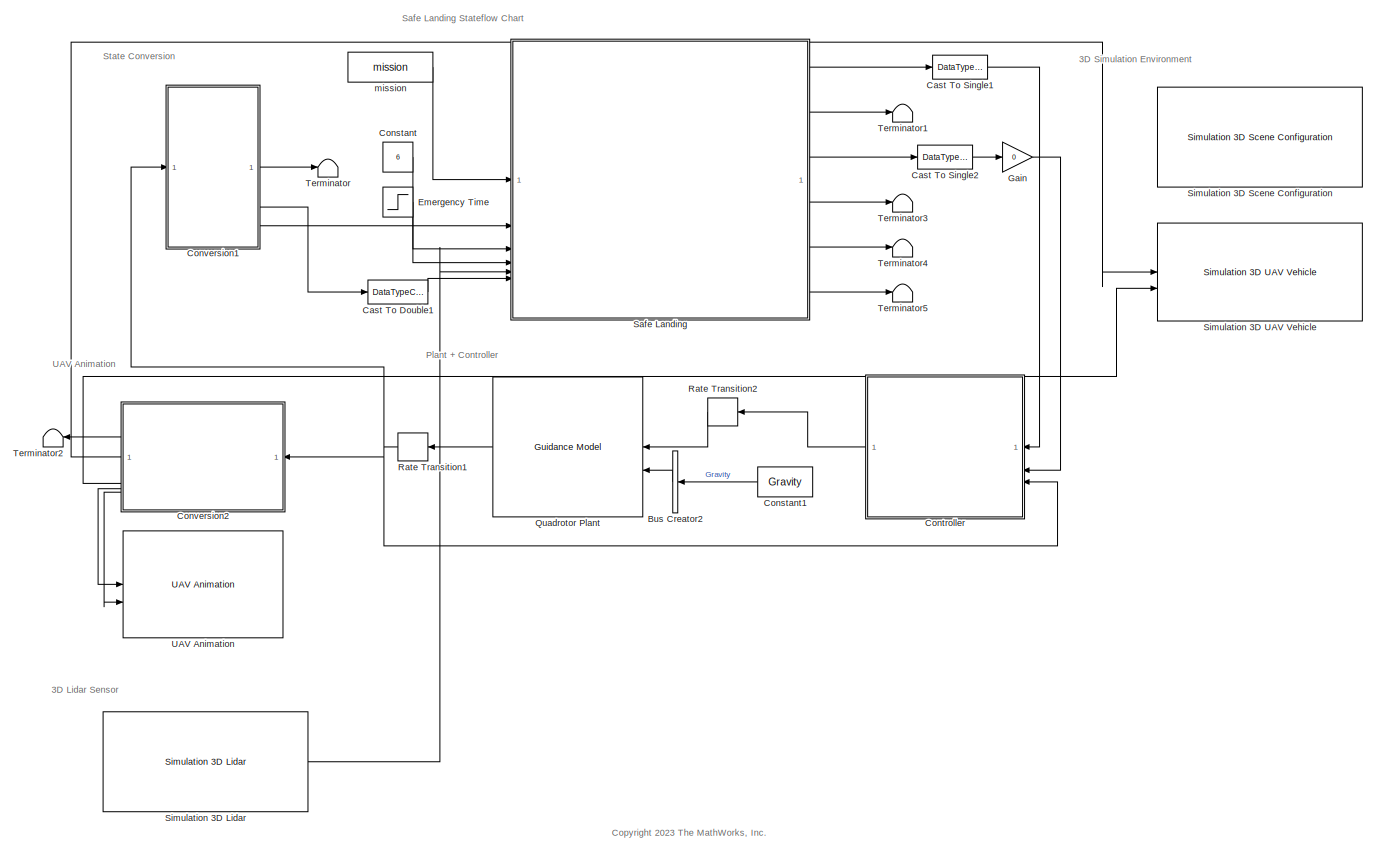
[diagram: root canvas - part 1/1, most of the canvas]
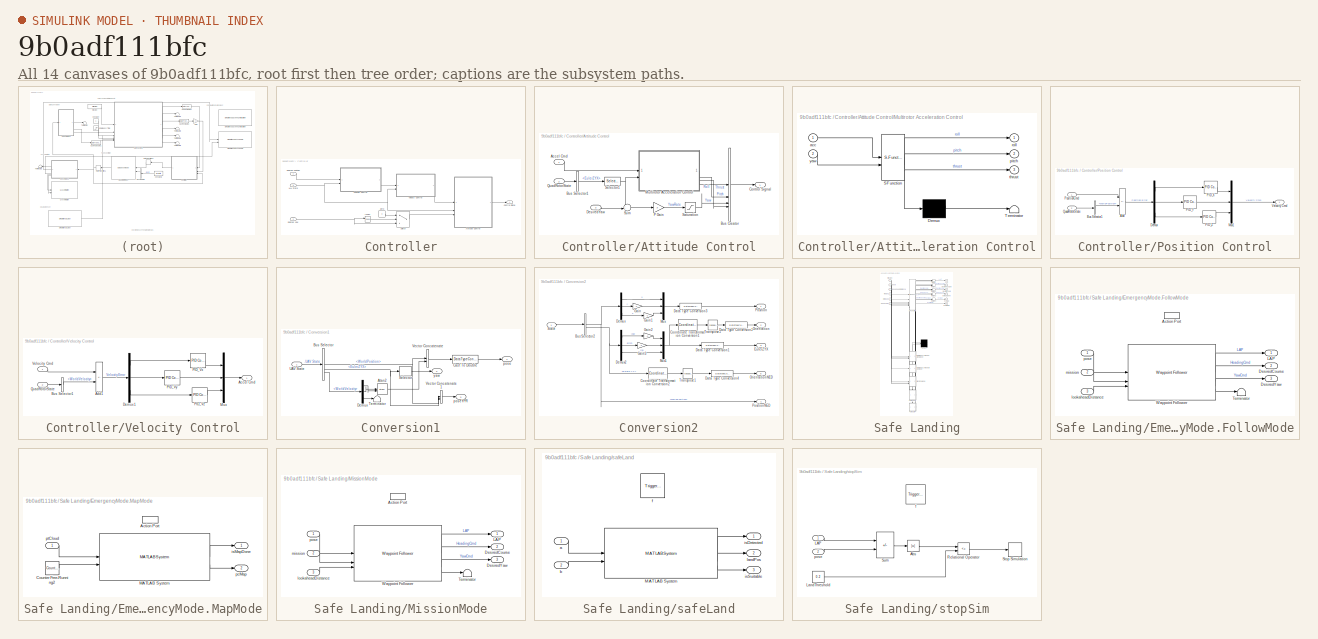
[diagram: thumbnail index - all 14 canvases of the model, root first then tree order]
MODEL slx_9b0adf111bfc
KIND model
CONFIG AbsTol = auto
CONFIG EnableMultiTasking = off
CONFIG FixedStep = auto
CONFIG MaxStep = auto
CONFIG MinStep = auto
CONFIG RelTol = 1e-3
CONFIG SampleTimeConstraint = Unconstrained
CONFIG SolverName = VariableStepAuto
CONFIG StartTime = 0.0
CONFIG StopTime = inf
BLOCK [BusCreator] Bus Creator2
  DisplayOption = bar
  InheritFromInputs = on
  Inputs = 1
  NonVirtualBus = on
  OutDataTypeStr = Bus: uavGuidanceEnvironmentBus
BLOCK [DataTypeConversion] Cast To Double1
  OutDataTypeStr = double
  RndMeth = Floor
  SaturateOnIntegerOverflow = off
BLOCK [DataTypeConversion] Cast To Single1
  OutDataTypeStr = single
  RndMeth = Floor
  SaturateOnIntegerOverflow = off
BLOCK [DataTypeConversion] Cast To Single2
  OutDataTypeStr = single
  RndMeth = Floor
  SaturateOnIntegerOverflow = off
BLOCK [Constant] Constant
  Value = 6
BLOCK [Constant] Constant1
  AttributesFormatString = %<Value>
  OutDataTypeStr = single
  Value = Gravity
BLOCK [SubSystem] Controller
BLOCK [SubSystem] Controller/Attitude Control
BLOCK [Inport] Controller/Attitude Control/Accel Cmd
BLOCK [BusCreator] Controller/Attitude Control/Bus Creator
  DisplayOption = bar
  InheritFromInputs = off
  Inputs = 4
  NonVirtualBus = on
  OutDataTypeStr = Bus: uavGuidanceControlBus
BLOCK [BusSelector] Controller/Attitude Control/Bus Selector1
  NameLocation = top
  OutputSignals = EulerZYX
BLOCK [Outport] Controller/Attitude Control/Control Signal
BLOCK [Inport] Controller/Attitude Control/DesiredYaw
  Port = 3
BLOCK [SubSystem] Controller/Attitude Control/Multirotor Acceleration Control
  ErrorFcn = Stateflow.Translate.translate
  PermitHierarchicalResolution = ExplicitOnly
  SFBlockType = MATLAB Function
  TreatAsAtomicUnit = on
BLOCK [Demux] Controller/Attitude Control/Multirotor Acceleration Control/ Demux 
  Outputs = 1
BLOCK [S-Function] Controller/Attitude Control/Multirotor Acceleration Control/ SFunction 
  EnableBusSupport = on
  FunctionName = sf_sfun
  Parameters = DroneMass,Gravity
  PortCounts = [2 4]
  SFcnIsStateOwnerBlock = off
  SFunctionDeploymentMode = off
  Tag = Stateflow S-Function 5
BLOCK [Terminator] Controller/Attitude Control/Multirotor Acceleration Control/ Terminator 
BLOCK [Inport] Controller/Attitude Control/Multirotor Acceleration Control/acc
BLOCK [Outport] Controller/Attitude Control/Multirotor Acceleration Control/pitch
  Port = 2
  VectorParamsAs1DForOutWhenUnconnected = off
BLOCK [Outport] Controller/Attitude Control/Multirotor Acceleration Control/roll
  VectorParamsAs1DForOutWhenUnconnected = off
BLOCK [Outport] Controller/Attitude Control/Multirotor Acceleration Control/thrust
  Port = 3
  VectorParamsAs1DForOutWhenUnconnected = off
BLOCK [Inport] Controller/Attitude Control/Multirotor Acceleration Control/yaw
  Port = 2
BLOCK [Gain] Controller/Attitude Control/P Gain
  Gain = 3
BLOCK [Inport] Controller/Attitude Control/QuadRotorState
  Port = 2
BLOCK [Saturate] Controller/Attitude Control/Saturation
BLOCK [Selector] Controller/Attitude Control/Selector1
  IndexOptions = Index vector (dialog)
  Indices = [1]
  InputPortWidth = 3
  OutputSizes = 1
BLOCK [Sum] Controller/Attitude Control/Sum
  Inputs = -+|
BLOCK [Outport] Controller/Control Signal
BLOCK [Inport] Controller/Desired Position
BLOCK [Inport] Controller/Desired Yaw
  Port = 2
BLOCK [RelationalOperator] Controller/IsNaN
  InputSameDT = off
  Operator = isNaN
  OutDataTypeStr = boolean
  RndMeth = Simplest
BLOCK [SubSystem] Controller/Position Control
BLOCK [Sum] Controller/Position Control/Add
  IconShape = rectangular
  Inputs = +-
BLOCK [BusSelector] Controller/Position Control/Bus Selector1
  NameLocation = top
  OutputSignals = WorldPosition
BLOCK [Demux] Controller/Position Control/Demux
  Outputs = 3
BLOCK [Mux] Controller/Position Control/Mux1
  DisplayOption = bar
  Inputs = 3
BLOCK [Reference] Controller/Position Control/PID_X  REF=slpidlib/PID Controller
  AttributesFormatString = P: %<P>, I: %<I>, D:%<D>
  SourceBlock = slpidlib/PID Controller
  SourceType = PID 1dof
BLOCK [Reference] Controller/Position Control/PID_Y  REF=slpidlib/PID Controller
  AttributesFormatString = P: %<P>, I: %<I>, D:%<D>
  SourceBlock = slpidlib/PID Controller
  SourceType = PID 1dof
BLOCK [Reference] Controller/Position Control/PID_Z  REF=slpidlib/PID Controller
  AttributesFormatString = P: %<P>, I: %<I>, D:%<D>
  SourceBlock = slpidlib/PID Controller
  SourceType = PID 1dof
BLOCK [Inport] Controller/Position Control/PositionCmd
BLOCK [Inport] Controller/Position Control/QuadRotorState
  Port = 2
BLOCK [Outport] Controller/Position Control/Velocity Cmd
BLOCK [Switch] Controller/Switch
  Criteria = u2 ~= 0
  InputSameDT = off
  SaturateOnIntegerOverflow = off
BLOCK [Inport] Controller/UAV State
  Port = 3
BLOCK [SubSystem] Controller/Velocity Control
BLOCK [Outport] Controller/Velocity Control/Accel Cmd
BLOCK [Sum] Controller/Velocity Control/Add1
  IconShape = rectangular
  Inputs = +-
BLOCK [BusSelector] Controller/Velocity Control/Bus Selector1
  NameLocation = top
  OutputSignals = WorldVelocity
BLOCK [Demux] Controller/Velocity Control/Demux1
  Outputs = 3
BLOCK [Mux] Controller/Velocity Control/Mux
  DisplayOption = bar
  Inputs = 3
BLOCK [Reference] Controller/Velocity Control/PID_Vx  REF=slpidlib/PID Controller
  AttributesFormatString = P: %<P>, I: %<I>, D:%<D>
  SourceBlock = slpidlib/PID Controller
  SourceType = PID 1dof
BLOCK [Reference] Controller/Velocity Control/PID_Vy  REF=slpidlib/PID Controller
  AttributesFormatString = P: %<P>, I: %<I>, D:%<D>
  SourceBlock = slpidlib/PID Controller
  SourceType = PID 1dof
BLOCK [Reference] Controller/Velocity Control/PID_Vz  REF=slpidlib/PID Controller
  AttributesFormatString = P: %<P>, I: %<I>, D:%<D>
  SourceBlock = slpidlib/PID Controller
  SourceType = PID 1dof
BLOCK [Inport] Controller/Velocity Control/QuadRotorState
  Port = 2
BLOCK [Inport] Controller/Velocity Control/Velocity Cmd
BLOCK [Constant] Controller/Zero
  OutDataTypeStr = Inherit: Inherit via back propagation
  Value = 0
BLOCK [SubSystem] Conversion1
BLOCK [Trigonometry] Conversion1/Atan2
  Operator = atan2
BLOCK [BusSelector] Conversion1/Bus Selector
  OutputSignals = WorldPosition,EulerZYX,WorldVelocity
BLOCK [DataTypeConversion] Conversion1/Cast To Double
  OutDataTypeStr = double
  RndMeth = Floor
  SaturateOnIntegerOverflow = off
BLOCK [Demux] Conversion1/Demux
  Outputs = 3
BLOCK [Selector] Conversion1/Selector
  IndexOptions = Index vector (dialog)
  Indices = [1]
  InputPortWidth = 3
  OutputSizes = 1
BLOCK [Terminator] Conversion1/Terminator
BLOCK [Inport] Conversion1/UAV State
BLOCK [Concatenate] Conversion1/Vector Concatenate
BLOCK [Concatenate] Conversion1/Vector Concatenate1
BLOCK [Outport] Conversion1/pose
BLOCK [Outport] Conversion1/poseYPR
  Port = 3
BLOCK [Outport] Conversion1/yaw
  Port = 2
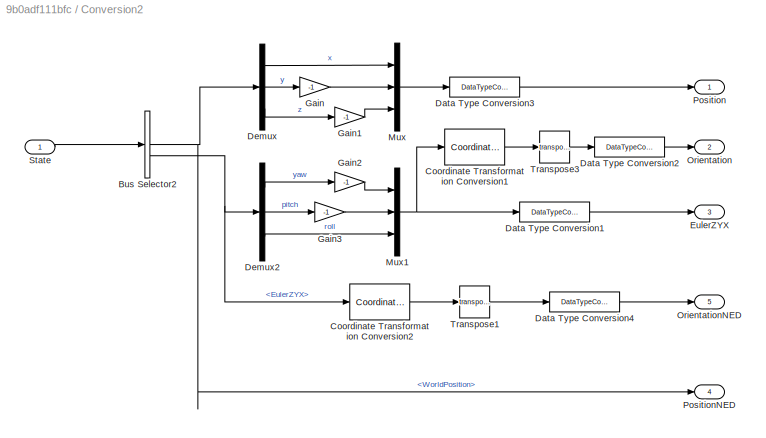
BLOCK [SubSystem] Conversion2
BLOCK [BusSelector] Conversion2/Bus Selector2
  OutputSignals = WorldPosition,EulerZYX
BLOCK [Reference] Conversion2/Coordinate Transformation Conversion1  REF=robotcorelib/Coordinate Transformation Conversion
  SourceBlock = robotcorelib/Coordinate Transformation Conversion
  SourceType = robotics.slcore.internal.block.CoordinateTransformationConversion
BLOCK [Reference] Conversion2/Coordinate Transformation Conversion2  REF=robotcorelib/Coordinate Transformation Conversion
  SourceBlock = robotcorelib/Coordinate Transformation Conversion
  SourceType = robotics.slcore.internal.block.CoordinateTransformationConversion
BLOCK [DataTypeConversion] Conversion2/Data Type Conversion1
  OutDataTypeStr = double
  RndMeth = Floor
  SaturateOnIntegerOverflow = off
BLOCK [DataTypeConversion] Conversion2/Data Type Conversion2
  OutDataTypeStr = double
  RndMeth = Floor
  SaturateOnIntegerOverflow = off
BLOCK [DataTypeConversion] Conversion2/Data Type Conversion3
  OutDataTypeStr = double
  RndMeth = Floor
  SaturateOnIntegerOverflow = off
BLOCK [DataTypeConversion] Conversion2/Data Type Conversion4
  OutDataTypeStr = double
  RndMeth = Floor
  SaturateOnIntegerOverflow = off
BLOCK [Demux] Conversion2/Demux
  Outputs = 3
BLOCK [Demux] Conversion2/Demux2
  Outputs = 3
BLOCK [Outport] Conversion2/EulerZYX
  Port = 3
BLOCK [Gain] Conversion2/Gain
  Gain = -1
BLOCK [Gain] Conversion2/Gain1
  Gain = -1
BLOCK [Gain] Conversion2/Gain2
  Gain = -1
BLOCK [Gain] Conversion2/Gain3
  Gain = -1
BLOCK [Mux] Conversion2/Mux
  DisplayOption = bar
  Inputs = 3
BLOCK [Mux] Conversion2/Mux1
  DisplayOption = bar
  Inputs = 3
BLOCK [Outport] Conversion2/Orientation
  Port = 2
BLOCK [Outport] Conversion2/OrientationNED
  Port = 5
BLOCK [Outport] Conversion2/Position
BLOCK [Outport] Conversion2/PositionNED
  Port = 4
BLOCK [Inport] Conversion2/State
BLOCK [Math] Conversion2/Transpose1
  Operator = transpose
BLOCK [Math] Conversion2/Transpose3
  Operator = transpose
BLOCK [Step] Emergency Time
  After = 2
  Before = 1
  SampleTime = 0
  Time = Time
BLOCK [Gain] Gain
  Gain = 0
  NameLocation = top
BLOCK [Reference] Quadrotor Plant  REF=uavalgslib/Guidance Model
  SourceBlock = uavalgslib/Guidance Model
  SourceType = Guidance Model
BLOCK [RateTransition] Rate Transition1
  OutPortSampleTime = UAVSampleTime
BLOCK [RateTransition] Rate Transition2
  OutPortSampleTime = UAVSampleTime
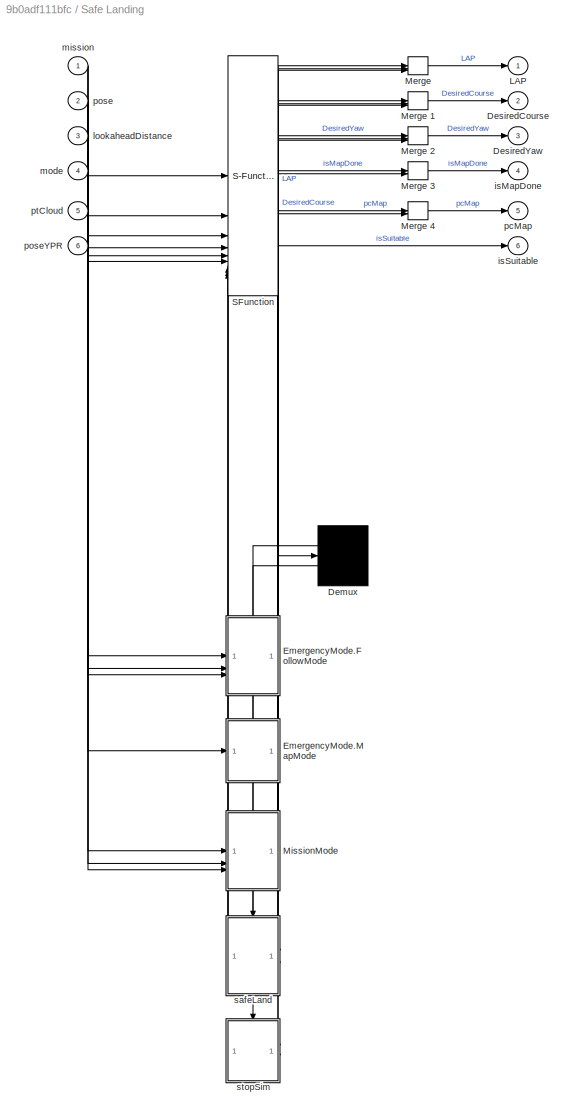
BLOCK [SubSystem] Safe Landing
  ErrorFcn = Stateflow.Translate.translate
  PermitHierarchicalResolution = ExplicitOnly
  SFBlockType = Chart
  SystemSampleTime = 0.1
  TreatAsAtomicUnit = on
BLOCK [Demux] Safe Landing/ Demux 
  Outputs = 2
BLOCK [Merge] Safe Landing/ Merge 
  Inputs = 3
BLOCK [Merge] Safe Landing/ Merge 1
  Inputs = 3
BLOCK [Merge] Safe Landing/ Merge 2
  Inputs = 3
BLOCK [Merge] Safe Landing/ Merge 3
BLOCK [Merge] Safe Landing/ Merge 4
BLOCK [S-Function] Safe Landing/ SFunction 
  EnableBusSupport = on
  FunctionName = sf_sfun
  PortCounts = [9 11]
  SFcnIsStateOwnerBlock = off
  SFunctionDeploymentMode = off
  Tag = Stateflow S-Function 2
BLOCK [Outport] Safe Landing/DesiredCourse
  Port = 2
BLOCK [Outport] Safe Landing/DesiredYaw
  Port = 3
BLOCK [SubSystem] Safe Landing/EmergencyMode.FollowMode
  PreDeleteFcn = Stateflow.SLINSF.SimulinkMan.removePreDeleteFcn
  UndoDeleteFcn = Stateflow.SLINSF.SimulinkMan.restorePreDeleteFcn
BLOCK [ActionPort] Safe Landing/EmergencyMode.FollowMode/Action Port
  CopyFcn = Stateflow.SLINSF.SimulinkMan.removeBlockPreDeleteFcn
  PreDeleteFcn = Stateflow.SLINSF.SimulinkMan.unsafePredeleteFcn
BLOCK [Outport] Safe Landing/EmergencyMode.FollowMode/DesiredCourse
  Port = 2
BLOCK [Outport] Safe Landing/EmergencyMode.FollowMode/DesiredYaw
  Port = 3
BLOCK [Outport] Safe Landing/EmergencyMode.FollowMode/LAP
BLOCK [Terminator] Safe Landing/EmergencyMode.FollowMode/Terminator
BLOCK [Reference] Safe Landing/EmergencyMode.FollowMode/Waypoint Follower  REF=uavalgslib/Waypoint Follower
  SourceBlock = uavalgslib/Waypoint Follower
  SourceType = uav.sluav.internal.system.WaypointFollower
BLOCK [Inport] Safe Landing/EmergencyMode.FollowMode/lookaheadDistance
  Port = 3
BLOCK [Inport] Safe Landing/EmergencyMode.FollowMode/mission
  Port = 2
BLOCK [Inport] Safe Landing/EmergencyMode.FollowMode/pose
BLOCK [SubSystem] Safe Landing/EmergencyMode.MapMode
  PreDeleteFcn = Stateflow.SLINSF.SimulinkMan.removePreDeleteFcn
  UndoDeleteFcn = Stateflow.SLINSF.SimulinkMan.restorePreDeleteFcn
BLOCK [ActionPort] Safe Landing/EmergencyMode.MapMode/Action Port
  CopyFcn = Stateflow.SLINSF.SimulinkMan.removeBlockPreDeleteFcn
  PreDeleteFcn = Stateflow.SLINSF.SimulinkMan.unsafePredeleteFcn
BLOCK [Reference] Safe Landing/EmergencyMode.MapMode/Counter Free-Running2  REF=simulink/Sources/Counter
Free-Running
  SourceBlock = simulink/Sources/Counter\nFree-Running
  SourceType = Counter Free-Running
BLOCK [MATLABSystem] Safe Landing/EmergencyMode.MapMode/MATLAB System
  MaskDisplay = disp('exampleHelperMapBuilder');\nport_label('input',1,'ptcloud');\nport_label('input',2,'count');\nport_label('output',1,'isMapDone');\nport_label('output',2,'pcMap');
  MaskType = exampleHelperMapBuilder
  SimulateUsing = Interpreted execution
  System = exampleHelperMapBuilder
  downsamplePercent = 0.1
  mapGridSize = 0.2
  quadCopterROI = [ -2, 2, -2, 2, -2, 2 ]
  sensorPoseWRTUAV = rigidtform3d( [ 90, 90, 0 ], [ 0, 0, 0 ] )
BLOCK [Outport] Safe Landing/EmergencyMode.MapMode/isMapDone
  OutDataTypeStr = boolean
  PortDimensions = [1 1]
  VarSizeSig = Yes
BLOCK [Outport] Safe Landing/EmergencyMode.MapMode/pcMap
  OutDataTypeStr = double
  Port = 2
  PortDimensions = [600000 3]
  VarSizeSig = No
BLOCK [Inport] Safe Landing/EmergencyMode.MapMode/ptCloud
BLOCK [Outport] Safe Landing/LAP
BLOCK [SubSystem] Safe Landing/MissionMode
  PreDeleteFcn = Stateflow.SLINSF.SimulinkMan.removePreDeleteFcn
  UndoDeleteFcn = Stateflow.SLINSF.SimulinkMan.restorePreDeleteFcn
BLOCK [ActionPort] Safe Landing/MissionMode/Action Port
  CopyFcn = Stateflow.SLINSF.SimulinkMan.removeBlockPreDeleteFcn
  PreDeleteFcn = Stateflow.SLINSF.SimulinkMan.unsafePredeleteFcn
BLOCK [Outport] Safe Landing/MissionMode/DesiredCourse
  Port = 2
BLOCK [Outport] Safe Landing/MissionMode/DesiredYaw
  Port = 3
BLOCK [Outport] Safe Landing/MissionMode/LAP
BLOCK [Terminator] Safe Landing/MissionMode/Terminator
BLOCK [Reference] Safe Landing/MissionMode/Waypoint Follower  REF=uavalgslib/Waypoint Follower
  SourceBlock = uavalgslib/Waypoint Follower
  SourceType = uav.sluav.internal.system.WaypointFollower
BLOCK [Inport] Safe Landing/MissionMode/lookaheadDistance
  Port = 3
BLOCK [Inport] Safe Landing/MissionMode/mission
  Port = 2
BLOCK [Inport] Safe Landing/MissionMode/pose
BLOCK [Outport] Safe Landing/isMapDone
  Port = 4
BLOCK [Outport] Safe Landing/isSuitable
  Port = 6
BLOCK [Inport] Safe Landing/lookaheadDistance
  Port = 3
BLOCK [Inport] Safe Landing/mission
BLOCK [Inport] Safe Landing/mode
  Port = 4
BLOCK [Outport] Safe Landing/pcMap
  Port = 5
BLOCK [Inport] Safe Landing/pose
  Port = 2
BLOCK [Inport] Safe Landing/poseYPR
  Port = 6
BLOCK [Inport] Safe Landing/ptCloud
  Port = 5
BLOCK [SubSystem] Safe Landing/safeLand
  PreDeleteFcn = Stateflow.SLINSF.SimulinkMan.removePreDeleteFcn
  UndoDeleteFcn = Stateflow.SLINSF.SimulinkMan.restorePreDeleteFcn
BLOCK [MATLABSystem] Safe Landing/safeLand/MATLAB System
  MaskDisplay = disp('exampleHelperSafeLanding');\nport_label('input',1,'ptCloudMap');\nport_label('input',2,'uavStartPosition');\nport_label('output',1,'isDetected');\nport_label('output',2,'bestLandingZone');\nport_label('output',3,'isSuitable');
  MaskType = exampleHelperSafeLanding
  SimulateUsing = Interpreted execution
  System = exampleHelperSafeLanding
  gridSize = 3
  innerBlockSize = [ 20, 20 ]
  minPoints = 10
  pcDownsamplePercent = 0.1
  qualityThreshold = 1
  radius = 5
  reliefThreshold = 3
  residualThreshold = 10
  slopeThreshold = 6
  verticalVarianceThreshold = 0.5
  weight = [ 1, 1, 1, 1 ]
BLOCK [Inport] Safe Landing/safeLand/a
  OutDataTypeStr = double
  PortDimensions = [600000 3]
  SignalType = real
  VarSizeSig = No
BLOCK [Inport] Safe Landing/safeLand/b
  OutDataTypeStr = double
  Port = 2
  PortDimensions = [3 1]
  SignalType = real
  VarSizeSig = No
BLOCK [TriggerPort] Safe Landing/safeLand/f
  CopyFcn = Stateflow.SLINSF.SimulinkMan.removeBlockPreDeleteFcn
  PreDeleteFcn = Stateflow.SLINSF.SimulinkMan.unsafePredeleteFcn
  StatesWhenEnabling = held
  TriggerType = function-call
  VariantControl = (inherit)
BLOCK [Outport] Safe Landing/safeLand/isDetected
BLOCK [Outport] Safe Landing/safeLand/isSuitable
  Port = 3
BLOCK [Outport] Safe Landing/safeLand/landPos
  Port = 2
BLOCK [SubSystem] Safe Landing/stopSim
  PreDeleteFcn = Stateflow.SLINSF.SimulinkMan.removePreDeleteFcn
  UndoDeleteFcn = Stateflow.SLINSF.SimulinkMan.restorePreDeleteFcn
BLOCK [Abs] Safe Landing/stopSim/Abs
  SaturateOnIntegerOverflow = off
BLOCK [Inport] Safe Landing/stopSim/LAP
  OutDataTypeStr = double
  PortDimensions = 1
  SignalType = real
  VarSizeSig = No
BLOCK [Constant] Safe Landing/stopSim/LandThreshold
  Value = 0.2
BLOCK [RelationalOperator] Safe Landing/stopSim/Relational Operator
  InputSameDT = off
  Operator = <=
  OutDataTypeStr = boolean
  RndMeth = Simplest
BLOCK [Stop] Safe Landing/stopSim/Stop Simulation
BLOCK [Sum] Safe Landing/stopSim/Sum
  IconShape = rectangular
  Inputs = +-
BLOCK [TriggerPort] Safe Landing/stopSim/f
  CopyFcn = Stateflow.SLINSF.SimulinkMan.removeBlockPreDeleteFcn
  PreDeleteFcn = Stateflow.SLINSF.SimulinkMan.unsafePredeleteFcn
  StatesWhenEnabling = held
  TriggerType = function-call
  VariantControl = (inherit)
BLOCK [Inport] Safe Landing/stopSim/pose
  OutDataTypeStr = double
  Port = 2
  PortDimensions = 1
  SignalType = real
  VarSizeSig = No
BLOCK [Reference] Simulation 3D Lidar  REF=sim3dphyssensorlib/Simulation 3D Lidar
  LibrarySourceBlock = uavsim3dlib/Simulation 3D Lidar
  Priority = 1
  SourceBlock = sim3dphyssensorlib/Simulation 3D Lidar
  SourceType = Simulation 3D Lidar
BLOCK [Reference] Simulation 3D Scene Configuration  REF=sim3dlib/Simulation 3D Scene Configuration
  LibrarySourceBlock = uavsim3dlib/Simulation 3D Scene Configuration
  Priority = 0
  SourceBlock = sim3dlib/Simulation 3D Scene Configuration
  SourceType = Simulation 3D Scene Configuration
BLOCK [Reference] Simulation 3D UAV Vehicle  REF=uavsim3dlib/Simulation 3D UAV Vehicle
  Priority = -1
  SourceBlock = uavsim3dlib/Simulation 3D UAV Vehicle
  SourceType = Simulation 3D UAV Vehicle
BLOCK [Terminator] Terminator
BLOCK [Terminator] Terminator1
BLOCK [Terminator] Terminator2
  NameLocation = top
BLOCK [Terminator] Terminator3
BLOCK [Terminator] Terminator4
BLOCK [Terminator] Terminator5
BLOCK [Reference] UAV Animation  REF=uavutilslib/UAV Animation
  SourceBlock = uavutilslib/UAV Animation
  SourceType = uav.sluav.internal.system.UAVAnimation
BLOCK [Constant] mission
  Value = mission
ANNOTATION (root): 3D Lidar Sensor
ANNOTATION (root): 3D Simulation Environment
ANNOTATION (root): <copyright redacted>
ANNOTATION (root): Plant + Controller
ANNOTATION (root): Safe Landing Stateflow Chart
ANNOTATION (root): State Conversion
ANNOTATION (root): UAV Animation
LINE Bus Creator2:1 -> Quadrotor Plant:2
LINE Cast To Double1:1 -> Safe Landing:6
LINE Cast To Single1:1 -> Controller:1
LINE Cast To Single2:1 -> Gain:1
LINE Constant1:1 -> Bus Creator2:1
LINE Constant:1 -> Safe Landing:3
LINE Controller/Attitude Control/Accel Cmd:1 -> Controller/Attitude Control/Multirotor Acceleration Control:1
LINE Controller/Attitude Control/Bus Creator:1 -> Controller/Attitude Control/Control Signal:1
LINE Controller/Attitude Control/Bus Selector1:1 -> Controller/Attitude Control/Selector1:1
LINE Controller/Attitude Control/DesiredYaw:1 -> Controller/Attitude Control/Sum:2
LINE Controller/Attitude Control/Multirotor Acceleration Control:1 -> Controller/Attitude Control/Bus Creator:1
LINE Controller/Attitude Control/Multirotor Acceleration Control:2 -> Controller/Attitude Control/Bus Creator:2
LINE Controller/Attitude Control/Multirotor Acceleration Control:3 -> Controller/Attitude Control/Bus Creator:4
LINE Controller/Attitude Control/P Gain:1 -> Controller/Attitude Control/Saturation:1
LINE Controller/Attitude Control/QuadRotorState:1 -> Controller/Attitude Control/Bus Selector1:1
LINE Controller/Attitude Control/Saturation:1 -> Controller/Attitude Control/Bus Creator:3
NET Controller/Attitude Control/Selector1:1 -> Controller/Attitude Control/Multirotor Acceleration Control:2, Controller/Attitude Control/Sum:1
LINE Controller/Attitude Control/Sum:1 -> Controller/Attitude Control/P Gain:1
LINE Controller/Attitude Control:1 -> Controller/Control Signal:1
LINE Controller/Desired Position:1 -> Controller/Position Control:1
NET Controller/Desired Yaw:1 -> Controller/IsNaN:1, Controller/Switch:3
LINE Controller/IsNaN:1 -> Controller/Switch:2
LINE Controller/Position Control/Add:1 -> Controller/Position Control/Demux:1
LINE Controller/Position Control/Bus Selector1:1 -> Controller/Position Control/Add:2
LINE Controller/Position Control/Demux:1 -> Controller/Position Control/PID_X:1
LINE Controller/Position Control/Demux:2 -> Controller/Position Control/PID_Y:1
LINE Controller/Position Control/Demux:3 -> Controller/Position Control/PID_Z:1
LINE Controller/Position Control/Mux1:1 -> Controller/Position Control/Velocity Cmd:1
LINE Controller/Position Control/PID_X:1 -> Controller/Position Control/Mux1:1
LINE Controller/Position Control/PID_Y:1 -> Controller/Position Control/Mux1:2
LINE Controller/Position Control/PID_Z:1 -> Controller/Position Control/Mux1:3
LINE Controller/Position Control/PositionCmd:1 -> Controller/Position Control/Add:1
LINE Controller/Position Control/QuadRotorState:1 -> Controller/Position Control/Bus Selector1:1
LINE Controller/Position Control:1 -> Controller/Velocity Control:1
LINE Controller/Switch:1 -> Controller/Attitude Control:3
NET Controller/UAV State:1 -> Controller/Attitude Control:2, Controller/Position Control:2, Controller/Velocity Control:2
LINE Controller/Velocity Control/Add1:1 -> Controller/Velocity Control/Demux1:1
LINE Controller/Velocity Control/Bus Selector1:1 -> Controller/Velocity Control/Add1:2
LINE Controller/Velocity Control/Demux1:1 -> Controller/Velocity Control/PID_Vx:1
LINE Controller/Velocity Control/Demux1:2 -> Controller/Velocity Control/PID_Vy:1
LINE Controller/Velocity Control/Demux1:3 -> Controller/Velocity Control/PID_Vz:1
LINE Controller/Velocity Control/Mux:1 -> Controller/Velocity Control/Accel Cmd:1
LINE Controller/Velocity Control/PID_Vx:1 -> Controller/Velocity Control/Mux:1
LINE Controller/Velocity Control/PID_Vy:1 -> Controller/Velocity Control/Mux:2
LINE Controller/Velocity Control/PID_Vz:1 -> Controller/Velocity Control/Mux:3
LINE Controller/Velocity Control/QuadRotorState:1 -> Controller/Velocity Control/Bus Selector1:1
LINE Controller/Velocity Control/Velocity Cmd:1 -> Controller/Velocity Control/Add1:1
LINE Controller/Velocity Control:1 -> Controller/Attitude Control:1
LINE Controller/Zero:1 -> Controller/Switch:1
LINE Controller:1 -> Rate Transition2:1
LINE Conversion1/Atan2:1 -> Conversion1/Vector Concatenate:2
NET Conversion1/Bus Selector:1 -> Conversion1/Vector Concatenate1:1, Conversion1/Vector Concatenate:1
NET Conversion1/Bus Selector:2 -> Conversion1/Selector:1, Conversion1/Vector Concatenate1:2
LINE Conversion1/Bus Selector:3 -> Conversion1/Demux:1
LINE Conversion1/Cast To Double:1 -> Conversion1/pose:1
LINE Conversion1/Demux:1 -> Conversion1/Atan2:2
LINE Conversion1/Demux:2 -> Conversion1/Atan2:1
LINE Conversion1/Demux:3 -> Conversion1/Terminator:1
LINE Conversion1/Selector:1 -> Conversion1/yaw:1
LINE Conversion1/UAV State:1 -> Conversion1/Bus Selector:1
LINE Conversion1/Vector Concatenate1:1 -> Conversion1/poseYPR:1
LINE Conversion1/Vector Concatenate:1 -> Conversion1/Cast To Double:1
LINE Conversion1:1 -> Safe Landing:2
LINE Conversion1:2 -> Terminator:1
LINE Conversion1:3 -> Cast To Double1:1
NET Conversion2/Bus Selector2:1 -> Conversion2/Demux:1, Conversion2/PositionNED:1
NET Conversion2/Bus Selector2:2 -> Conversion2/Coordinate Transformation Conversion2:1, Conversion2/Demux2:1
LINE Conversion2/Coordinate Transformation Conversion1:1 -> Conversion2/Transpose3:1
LINE Conversion2/Coordinate Transformation Conversion2:1 -> Conversion2/Transpose1:1
LINE Conversion2/Data Type Conversion1:1 -> Conversion2/EulerZYX:1
LINE Conversion2/Data Type Conversion2:1 -> Conversion2/Orientation:1
LINE Conversion2/Data Type Conversion3:1 -> Conversion2/Position:1
LINE Conversion2/Data Type Conversion4:1 -> Conversion2/OrientationNED:1
LINE Conversion2/Demux2:1 -> Conversion2/Gain2:1
LINE Conversion2/Demux2:2 -> Conversion2/Gain3:1
LINE Conversion2/Demux2:3 -> Conversion2/Mux1:3
LINE Conversion2/Demux:1 -> Conversion2/Mux:1
LINE Conversion2/Demux:2 -> Conversion2/Gain:1
LINE Conversion2/Demux:3 -> Conversion2/Gain1:1
LINE Conversion2/Gain1:1 -> Conversion2/Mux:3
LINE Conversion2/Gain2:1 -> Conversion2/Mux1:1
LINE Conversion2/Gain3:1 -> Conversion2/Mux1:2
LINE Conversion2/Gain:1 -> Conversion2/Mux:2
NET Conversion2/Mux1:1 -> Conversion2/Coordinate Transformation Conversion1:1, Conversion2/Data Type Conversion1:1
LINE Conversion2/Mux:1 -> Conversion2/Data Type Conversion3:1
LINE Conversion2/State:1 -> Conversion2/Bus Selector2:1
LINE Conversion2/Transpose1:1 -> Conversion2/Data Type Conversion4:1
LINE Conversion2/Transpose3:1 -> Conversion2/Data Type Conversion2:1
LINE Conversion2:1 -> Simulation 3D UAV Vehicle:1
LINE Conversion2:2 -> Terminator2:1
LINE Conversion2:3 -> Simulation 3D UAV Vehicle:2
LINE Conversion2:4 -> UAV Animation:1
LINE Conversion2:5 -> UAV Animation:2
LINE Emergency Time:1 -> Safe Landing:4
LINE Gain:1 -> Controller:2
LINE Quadrotor Plant:1 -> Rate Transition1:1
NET Rate Transition1:1 -> Controller:3, Conversion1:1, Conversion2:1
LINE Rate Transition2:1 -> Quadrotor Plant:1
LINE Safe Landing:1 -> Cast To Single1:1
LINE Safe Landing:2 -> Terminator1:1
LINE Safe Landing:3 -> Cast To Single2:1
LINE Safe Landing:4 -> Terminator3:1
LINE Safe Landing:5 -> Terminator4:1
LINE Safe Landing:6 -> Terminator5:1
LINE Simulation 3D Lidar:1 -> Safe Landing:5
LINE mission:1 -> Safe Landing:1
note: NET lines group one-source signal fan-out (src -> all destinations, sorted); 1:1 wires keep LINE
CHART Safe Landing states=14 transitions=7
  STATE_LABEL 'EmergencyMode'
  STATE_LABEL 'FollowMode'
  STATE_LABEL 'InitPos\nen:\nposeInit = poseYPR;'
  STATE_LABEL 'MapMode'
  STATE_LABEL 'FollowMode'
  STATE_LABEL 'InitPos\nen:\nposeInit = poseYPR;'
  STATE_LABEL 'MapMode'
  STATE_LABEL 'HoverAndDetect'
  STATE_LABEL 'HoverMode\nen:\nposition = pose(1:3);\nscans = 0;\ndu:\nLAP = position;\n'
  STATE_LABEL 'LandDetection\nen,du:\ncurPosnNED = position(1:3);\ninitPosnNED = poseInit(1:3);\ncurPosnENU = [curPosnNED(2); curPosnNED(1); ...\n    -curPosnNED(3)];\ninitPosnENU = [initPosnNED(2); initPosnNED(1); ...\n    -initPosnNED(3)];\npositionDiff = curPosnENU - initPosnENU;\n[isDetected,LandingPos,isSuitable] = ...\n    safeLand(pcMap, positionDiff);\nLandingPos = pcToWorld(LandingPos,...\n    poseInit);\n'
  STATE_LABEL 'HoverMode\nen:\nposition = pose(1:3);\nscans = 0;\ndu:\nLAP = position;\n'
  STATE_LABEL 'LandDetection\nen,du:\ncurPosnNED = position(1:3);\ninitPosnNED = poseInit(1:3);\ncurPosnENU = [curPosnNED(2); curPosnNED(1); ...\n    -curPosnNED(3)];\ninitPosnENU = [initPosnNED(2); initPosnNED(1); ...\n    -initPosnNED(3)];\npositionDiff = curPosnENU - initPosnENU;\n[isDetected,LandingPos,isSuitable] = ...\n    safeLand(pcMap, positionDiff);\nLandingPos = pcToWorld(LandingPos,...\n    poseInit);\n'
  STATE_LABEL "LandMode\nen,du:\nLAP = [LandingPos(1:2) height]';\nuavDistXY = dist(LAP(1:2),pose(1:2));\n"
  STATE_LABEL 'MissionMode'
  STATE_LABEL "LandZone\nLAP = [LandingPos(1:2) 0]';\nstopSim(LAP(3), pose(3));"
  STATE_LABEL 'y = dist(a, b)'
  STATE_LABEL 'SCRIPT:\nfunction y = dist(a,b)\n \ny = sqrt((a(1)-b(1))^2 + (a(2) - b(2))^2);'
  STATE_LABEL 'stopSim(LAP, pose)'
  STATE_LABEL '[isDetected,landPos,isSuitable] = safeLand(a,b)'
  STATE_LABEL 'ptWorld = pcToWorld(bestLandLoc,pos)'
  STATE_LABEL 'SCRIPT:\nfunction ptWorld = pcToWorld(bestLandLoc,pos)\n \n\ninitUAVOrientation = [pos(6) pos(5) pos(4)];\ninitUAVPosition = [pos(2) pos(1) pos(3)]; \ninitUAVPose = rigidtform3d(initUAVOrientation, initUAVPosition);\nptWorld = pctransform(pointCloud(bestLandLoc),initUAVPose).Location;\n\nptWorld = [ptWorld(2) ptWorld(1) ptWorld(3)];'
CHART Controller/Attitude Control/Multirotor Acceleration Control states=1 transitions=1
  STATE_LABEL 'eML_blk_kernel()'
  STATE_LABEL 'SCRIPT:\nfunction [roll, pitch, thrust] = accControl(acc, yaw, DroneMass, Gravity)\n\n    xddot = acc(1);\n    yddot = acc(2);\n    zddot = acc(3);\n    \n    pitch = atan2((-xddot*cos(yaw)-yddot*sin(yaw)), ( -zddot + Gravity));\n    roll = atan2(((-xddot*sin(yaw)+yddot*cos(yaw))*cos(pitch)), (-zddot+Gravity));\n    \n    roll_limit = 25*pi/180;\n    pitch_limit = 25*pi/180;\n    \n    roll = min(roll_limit, m...<+157ch>'
CHART  states=0 transitions=0
CHART  states=0 transitions=0
